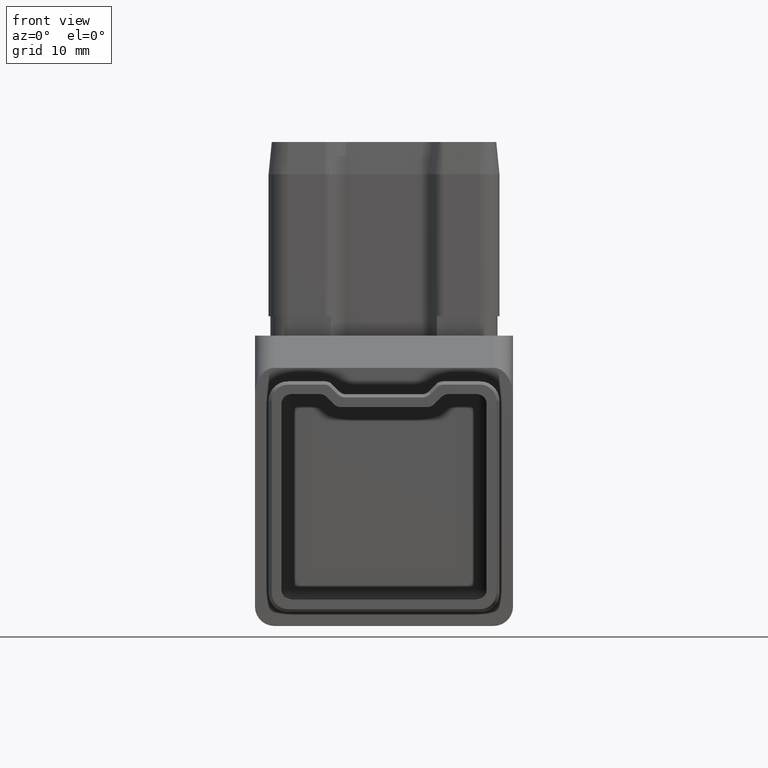
[diagram: clean part render]
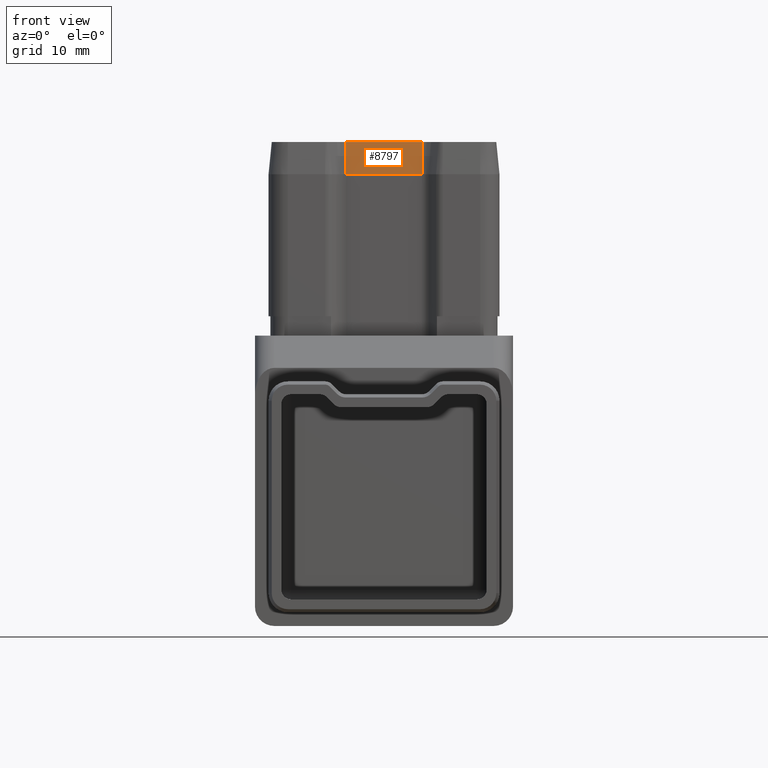
[diagram: same view with one face highlighted and labeled with its STEP entity id]
A machine part, front view. The second image highlights one B-rep face of the part: STEP entity #8797.
In plain terms, the highlighted planar face has unit normal (-0, 0.995, -0.0995).
Its self-contained STEP definition (entity closure, byte-faithful):
#286 = VECTOR ( 'NONE', #12556, 1000.000000000000200 ) ;
#679 = LINE ( 'NONE', #22653, #1908 ) ;
#1885 = DIRECTION ( 'NONE',  ( -4.718447854656915300E-016, -0.09950371902099822100, -0.9950371902099891500 ) ) ;
#1908 = VECTOR ( 'NONE', #3622, 1000.000000000000000 ) ;
#3292 = AXIS2_PLACEMENT_3D ( 'NONE', #11591, #19153, #11749 ) ;
#3593 = VECTOR ( 'NONE', #7614, 1000.000000000000000 ) ;
#3622 = DIRECTION ( 'NONE',  ( -1.000000000000000000, -1.475436303181053900E-016, 0.0000000000000000000 ) ) ;
#3707 = VERTEX_POINT ( 'NONE', #23010 ) ;
#3908 = VERTEX_POINT ( 'NONE', #4838 ) ;
#4678 = CARTESIAN_POINT ( 'NONE',  ( -5.878679656440358100, -12.90000000000000400, 52.50000000000000000 ) ) ;
#4838 = CARTESIAN_POINT ( 'NONE',  ( 5.878679656440365200, -13.39999999999999700, 47.49999999999999300 ) ) ;
#4943 = FACE_OUTER_BOUND ( 'NONE', #9421, .T. ) ;
#6996 = CARTESIAN_POINT ( 'NONE',  ( -5.878679656440358100, -12.90000000000000400, 52.50000000000000000 ) ) ;
#7614 = DIRECTION ( 'NONE',  ( -1.000000000000000000, -1.475436303181053900E-016, 0.0000000000000000000 ) ) ;
#7786 = CARTESIAN_POINT ( 'NONE',  ( 5.878679656440365200, -13.39999999999999700, 47.49999999999999300 ) ) ;
#8181 = VECTOR ( 'NONE', #1885, 1000.000000000000200 ) ;
#8365 = LINE ( 'NONE', #4678, #286 ) ;
#8797 = ADVANCED_FACE ( 'NONE', ( #4943 ), #9661, .F. ) ;
#9292 = ORIENTED_EDGE ( 'NONE', *, *, #10472, .F. ) ;
#9421 = EDGE_LOOP ( 'NONE', ( #9292, #20159, #14107, #23974 ) ) ;
#9661 = PLANE ( 'NONE',  #3292 ) ;
#10472 = EDGE_CURVE ( 'NONE', #3707, #3908, #13235, .T. ) ;
#11379 = CARTESIAN_POINT ( 'NONE',  ( 5.878679656440365200, -12.90000000000000200, 52.50000000000000000 ) ) ;
#11470 = EDGE_CURVE ( 'NONE', #3707, #18065, #679, .T. ) ;
#11591 = CARTESIAN_POINT ( 'NONE',  ( 5.878679656440365200, -12.90000000000000200, 52.50000000000000000 ) ) ;
#11749 = DIRECTION ( 'NONE',  ( 0.0000000000000000000, 0.09950371902099820800, 0.9950371902099891500 ) ) ;
#12363 = EDGE_CURVE ( 'NONE', #3908, #16659, #13737, .T. ) ;
#12556 = DIRECTION ( 'NONE',  ( -4.718447854656915300E-016, -0.09950371902099822100, -0.9950371902099891500 ) ) ;
#12577 = EDGE_CURVE ( 'NONE', #18065, #16659, #8365, .T. ) ;
#13235 = LINE ( 'NONE', #11379, #8181 ) ;
#13737 = LINE ( 'NONE', #7786, #3593 ) ;
#14031 = CARTESIAN_POINT ( 'NONE',  ( -5.878679656440358100, -13.39999999999999900, 47.49999999999999300 ) ) ;
#14107 = ORIENTED_EDGE ( 'NONE', *, *, #12577, .T. ) ;
#16659 = VERTEX_POINT ( 'NONE', #14031 ) ;
#18065 = VERTEX_POINT ( 'NONE', #6996 ) ;
#19153 = DIRECTION ( 'NONE',  ( -1.468113993451090300E-016, 0.9950371902099892600, -0.09950371902099822100 ) ) ;
#20159 = ORIENTED_EDGE ( 'NONE', *, *, #11470, .T. ) ;
#22653 = CARTESIAN_POINT ( 'NONE',  ( 5.878679656440365200, -12.90000000000000200, 52.50000000000000000 ) ) ;
#23010 = CARTESIAN_POINT ( 'NONE',  ( 5.878679656440365200, -12.90000000000000200, 52.50000000000000000 ) ) ;
#23974 = ORIENTED_EDGE ( 'NONE', *, *, #12363, .F. ) ;